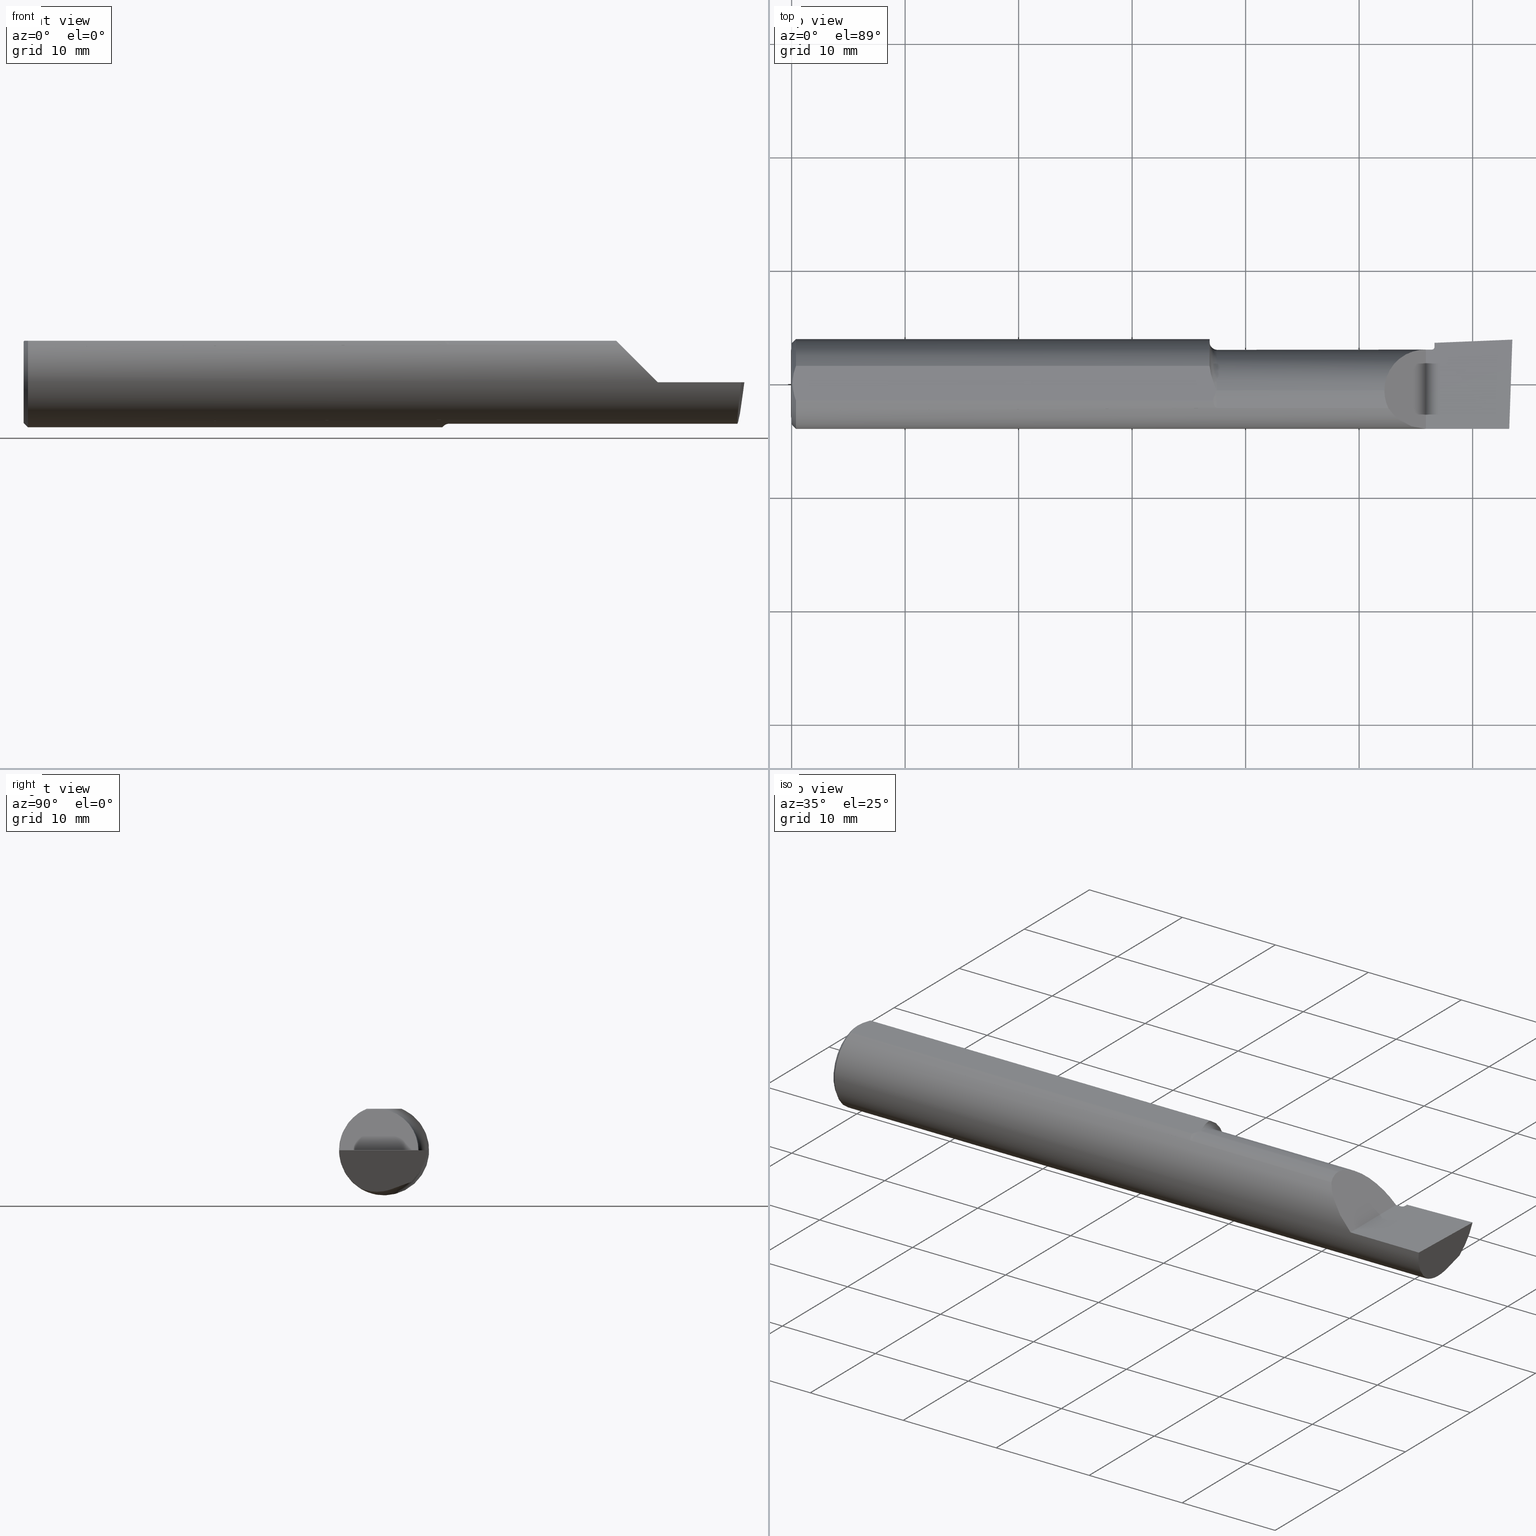
[diagram: canonical four-view strip — front | top / right | iso, engineering-drawing reading convention]
A machine part, canonical four-view strip (front | top / right | iso — engineering-drawing reading convention). The complete STEP part file that produces these views, byte-faithful:
ISO-10303-21;
HEADER;
FILE_DESCRIPTION (( 'STEP AP203' ),
    '1' );
FILE_NAME ('210312-BB318.STEP',
    '2024-04-17T23:24:31',
    ( '' ),
    ( '' ),
    'SwSTEP 2.0',
    'SolidWorks 2022',
    '' );
FILE_SCHEMA (( 'CONFIG_CONTROL_DESIGN' ));
ENDSEC;

DATA;
#1 = CARTESIAN_POINT ( 'NONE',  ( 0.01499999999999970281, 0.000000000000000000, 0.000000000000000000 ) ) ;
#2 = EDGE_LOOP ( 'NONE', ( #160, #362, #63, #96 ) ) ;
#3 = PERSON_AND_ORGANIZATION ( #416, #656 ) ;
#4 = CARTESIAN_POINT ( 'NONE',  ( 2.056100000000000705, -0.04605394310600454538, 0.1439000000000001112 ) ) ;
#5 = ORIENTED_EDGE ( 'NONE', *, *, #538, .T. ) ;
#6 = CARTESIAN_POINT ( 'NONE',  ( 2.476713598110543035, -0.008170903630063763509, -0.1439000000000001112 ) ) ;
#7 = EDGE_LOOP ( 'NONE', ( #213, #237, #634, #163, #200 ) ) ;
#8 = VECTOR ( 'NONE', #505, 39.37007874015748143 ) ;
#9 = PERSON_AND_ORGANIZATION ( #416, #656 ) ;
#10 = EDGE_CURVE ( 'NONE', #637, #297, #454, .T. ) ;
#11 = LINE ( 'NONE', #235, #178 ) ;
#12 = CARTESIAN_POINT ( 'NONE',  ( 0.004122478534597582081, 0.02050740516666000463, 0.1440999999999999504 ) ) ;
#13 = PERSON_AND_ORGANIZATION ( #416, #656 ) ;
#14 = LINE ( 'NONE', #360, #520 ) ;
#15 = EDGE_CURVE ( 'NONE', #652, #605, #627, .T. ) ;
#16 = CALENDAR_DATE ( 2024, 17, 4 ) ;
#17 = CARTESIAN_POINT ( 'NONE',  ( 1.473558490372085750, -0.08570000000287464337, 0.1304711462335919059 ) ) ;
#18 = CARTESIAN_POINT ( 'NONE',  ( 2.500000000000000000, 0.02421669862456291358, -0.1352217681310924902 ) ) ;
#19 = VECTOR ( 'NONE', #643, 39.37007874015748143 ) ;
#21 = ORIENTED_EDGE ( 'NONE', *, *, #296, .T. ) ;
#20 = EDGE_CURVE ( 'NONE', #75, #327, #229, .T. ) ;
#22 = VECTOR ( 'NONE', #540, 39.37007874015748143 ) ;
#23 = AXIS2_PLACEMENT_3D ( 'NONE', #294, #356, #687 ) ;
#24 = CARTESIAN_POINT ( 'NONE',  ( 1.470308733175471394, -0.08325729668116114979, 0.1320471792325036697 ) ) ;
#25 = CARTESIAN_POINT ( 'NONE',  ( 1.469201185154610068, -0.03693468910894925211, 0.1440999999999999504 ) ) ;
#26 = CARTESIAN_POINT ( 'NONE',  ( 0.002999999999999654852, 1.764715027525136477E-17, 0.1440999999999999504 ) ) ;
#27 = CARTESIAN_POINT ( 'NONE',  ( 1.474999999999999867, -0.02500000000000000486, -0.1439000000000000556 ) ) ;
#28 = VERTEX_POINT ( 'NONE', #180 ) ;
#29 = DIRECTION ( 'NONE',  ( 0.000000000000000000, 0.000000000000000000, 1.000000000000000000 ) ) ;
#30 = B_SPLINE_CURVE_WITH_KNOTS ( 'NONE', 3,
 ( #318, #89, #37, #429, #85, #304, #542, #421, #256, #260 ),
 .UNSPECIFIED., .F., .F.,
 ( 4, 2, 2, 2, 4 ),
 ( 0.001819519887002705571, 0.002458246943215913662, 0.003096973999429121754, 0.003735701055642329411, 0.004374428111855537503 ),
 .UNSPECIFIED. ) ;
#31 = DIRECTION ( 'NONE',  ( 0.000000000000000000, 1.000000000000000000, 0.000000000000000000 ) ) ;
#32 = ORIENTED_EDGE ( 'NONE', *, *, #64, .F. ) ;
#33 = CIRCLE ( 'NONE', #694, 0.1439000000000000556 ) ;
#34 = DIRECTION ( 'NONE',  ( 1.000000000000000000, 0.000000000000000000, 0.000000000000000000 ) ) ;
#35 = CARTESIAN_POINT ( 'NONE',  ( 2.499553225608604823, 0.1407279727905360600, 3.826894855694925850E-18 ) ) ;
#36 = ORIENTED_EDGE ( 'NONE', *, *, #201, .F. ) ;
#37 = CARTESIAN_POINT ( 'NONE',  ( 1.453136333117606371, -0.008834603825782310488, -0.1560646118524871007 ) ) ;
#38 = CARTESIAN_POINT ( 'NONE',  ( 1.474999999999999867, -0.02500000000000002220, 0.000000000000000000 ) ) ;
#39 = ORIENTED_EDGE ( 'NONE', *, *, #222, .T. ) ;
#40 = EDGE_CURVE ( 'NONE', #411, #616, #117, .T. ) ;
#41 = CARTESIAN_POINT ( 'NONE',  ( 1.450050504025077291, 0.06001999666777734638, 0.1440999999999999504 ) ) ;
#42 = ORIENTED_EDGE ( 'NONE', *, *, #513, .F. ) ;
#43 = EDGE_CURVE ( 'NONE', #157, #605, #470, .T. ) ;
#44 = CIRCLE ( 'NONE', #347, 0.02499999999999993894 ) ;
#45 = CALENDAR_DATE ( 2024, 17, 4 ) ;
#46 = CARTESIAN_POINT ( 'NONE',  ( 0.000000000000000000, 0.06250000000000000000, 0.1440999999999999504 ) ) ;
#47 = AXIS2_PLACEMENT_3D ( 'NONE', #111, #331, #571 ) ;
#48 = ORIENTED_EDGE ( 'NONE', *, *, #382, .F. ) ;
#49 = ADVANCED_FACE ( 'NONE', ( #174 ), #342, .T. ) ;
#50 = CARTESIAN_POINT ( 'NONE',  ( 2.056100000000000705, -0.02500000000000000486, 0.1439000000000001112 ) ) ;
#51 = ORIENTED_EDGE ( 'NONE', *, *, #95, .T. ) ;
#52 =( NAMED_UNIT ( * ) PLANE_ANGLE_UNIT ( ) SI_UNIT ( $, .RADIAN. ) );
#53 = CARTESIAN_POINT ( 'NONE',  ( 1.471844053232376659, -0.02500000000003148315, 0.1440999999999999504 ) ) ;
#54 = ORIENTED_EDGE ( 'NONE', *, *, #104, .F. ) ;
#55 = DIRECTION ( 'NONE',  ( -1.000000000000000000, -0.000000000000000000, -0.000000000000000000 ) ) ;
#56 = ORIENTED_EDGE ( 'NONE', *, *, #405, .T. ) ;
#57 = CLOSED_SHELL ( 'NONE', ( #548, #232, #357, #287, #436, #490, #73, #346, #699, #617, #276, #441, #521, #424, #593, #674, #49, #302, #666 ) ) ;
#58 = VECTOR ( 'NONE', #231, 39.37007874015748143 ) ;
#59 = CARTESIAN_POINT ( 'NONE',  ( 0.01499999999999972536, -0.06001999666777736026, 0.1440999999999999504 ) ) ;
#60 = CARTESIAN_POINT ( 'NONE',  ( 2.476130359589496788, -0.02499999999999999098, -0.1439000000000001112 ) ) ;
#61 = ORIENTED_EDGE ( 'NONE', *, *, #704, .F. ) ;
#62 = PLANE ( 'NONE',  #338 ) ;
#63 = ORIENTED_EDGE ( 'NONE', *, *, #726, .F. ) ;
#64 = EDGE_CURVE ( 'NONE', #452, #537, #622, .T. ) ;
#65 = CARTESIAN_POINT ( 'NONE',  ( 1.474999999999999867, -0.08569999999999942941, 0.1304711462354803120 ) ) ;
#66 = TOROIDAL_SURFACE ( 'NONE', #431, 0.1688999999999999946, 0.02499999999999993894 ) ;
#67 = CARTESIAN_POINT ( 'NONE',  ( 0.002999999999999654852, 1.764715027525136477E-17, 0.1440999999999999504 ) ) ;
#68 = CARTESIAN_POINT ( 'NONE',  ( 0.01499999999999972536, -0.06001999666777736026, 0.1440999999999999504 ) ) ;
#69 = EDGE_CURVE ( 'NONE', #171, #672, #584, .T. ) ;
#70 = CARTESIAN_POINT ( 'NONE',  ( 2.489266190342419360, -0.1561000000000000165, 3.826894855694925850E-18 ) ) ;
#71 = ORIENTED_EDGE ( 'NONE', *, *, #43, .F. ) ;
#72 = CARTESIAN_POINT ( 'NONE',  ( 0.002999999999999647914, -0.01031315224690933403, 0.1440999999999999781 ) ) ;
#73 = ADVANCED_FACE ( 'NONE', ( #195 ), #153, .F. ) ;
#74 = CARTESIAN_POINT ( 'NONE',  ( 0.002999999999999654852, 1.764715027525136477E-17, 0.1440999999999999504 ) ) ;
#75 = VERTEX_POINT ( 'NONE', #242 ) ;
#76 = CARTESIAN_POINT ( 'NONE',  ( 2.229814999632693251, 0.07017856946061203083, -0.1184930152355830879 ) ) ;
#77 = CARTESIAN_POINT ( 'NONE',  ( 2.219999999999999751, -0.02500000000000000486, 0.000000000000000000 ) ) ;
#78 = PRODUCT_DEFINITION_FORMATION_WITH_SPECIFIED_SOURCE ( 'ANY', '', #365, .NOT_KNOWN. ) ;
#79 = VERTEX_POINT ( 'NONE', #189 ) ;
#80 = VECTOR ( 'NONE', #168, 39.37007874015748143 ) ;
#81 = CONICAL_SURFACE ( 'NONE', #278, 0.1560999999999999888, 0.7853981633974471688 ) ;
#82 = PLANE ( 'NONE',  #23 ) ;
#83 = CARTESIAN_POINT ( 'NONE',  ( 0.01131807689752593361, 0.05044405151276061539, 0.1440999999999999781 ) ) ;
#84 = ORIENTED_EDGE ( 'NONE', *, *, #639, .T. ) ;
#85 = CARTESIAN_POINT ( 'NONE',  ( 1.451388441185261113, 0.01585133794323623918, -0.1555099485709025287 ) ) ;
#86 = DIRECTION ( 'NONE',  ( -1.000000000000000000, -0.000000000000000000, -0.000000000000000000 ) ) ;
#87 = VERTEX_POINT ( 'NONE', #474 ) ;
#88 = EDGE_CURVE ( 'NONE', #297, #637, #177, .T. ) ;
#89 = CARTESIAN_POINT ( 'NONE',  ( 1.453902027940762842, -0.01695323297373864391, -0.1553906460178914595 ) ) ;
#90 = FACE_OUTER_BOUND ( 'NONE', #2, .T. ) ;
#91 = ORIENTED_EDGE ( 'NONE', *, *, #354, .T. ) ;
#92 = DIRECTION ( 'NONE',  ( 0.000000000000000000, 0.000000000000000000, -1.000000000000000000 ) ) ;
#93 = AXIS2_PLACEMENT_3D ( 'NONE', #38, #86, #368 ) ;
#94 = DIRECTION ( 'NONE',  ( 0.000000000000000000, -1.000000000000000000, 0.000000000000000000 ) ) ;
#95 = EDGE_CURVE ( 'NONE', #233, #262, #107, .T. ) ;
#96 = ORIENTED_EDGE ( 'NONE', *, *, #678, .T. ) ;
#97 = CARTESIAN_POINT ( 'NONE',  ( 2.229821002046091571, 0.07620616581628353314, -0.1136908642440133677 ) ) ;
#98 = FACE_OUTER_BOUND ( 'NONE', #313, .T. ) ;
#99 = EDGE_CURVE ( 'NONE', #684, #135, #555, .T. ) ;
#100 = VERTEX_POINT ( 'NONE', #410 ) ;
#101 = CYLINDRICAL_SURFACE ( 'NONE', #592, 0.1560999999999999888 ) ;
#102 = CYLINDRICAL_SURFACE ( 'NONE', #434, 0.1439000000000001112 ) ;
#103 = EDGE_LOOP ( 'NONE', ( #380, #677 ) ) ;
#104 = EDGE_CURVE ( 'NONE', #652, #581, #305, .T. ) ;
#105 = PERSON_AND_ORGANIZATION ( #416, #656 ) ;
#106 = DIRECTION ( 'NONE',  ( -1.000000000000000000, 0.000000000000000000, 0.000000000000000000 ) ) ;
#107 = CIRCLE ( 'NONE', #569, 0.1688999999999999946 ) ;
#108 = CIRCLE ( 'NONE', #457, 0.1439000000000001667 ) ;
#109 = ORIENTED_EDGE ( 'NONE', *, *, #568, .F. ) ;
#110 = PERSON_AND_ORGANIZATION ( #416, #656 ) ;
#111 = CARTESIAN_POINT ( 'NONE',  ( 2.229999999999999538, -0.02500000000000000486, 0.000000000000000000 ) ) ;
#112 = ORIENTED_EDGE ( 'NONE', *, *, #639, .F. ) ;
#113 = LINE ( 'NONE', #173, #197 ) ;
#114 = EDGE_LOOP ( 'NONE', ( #332, #292, #185, #139, #42 ) ) ;
#115 = CIRCLE ( 'NONE', #670, 0.1560999999999999888 ) ;
#116 = LOCAL_TIME ( 16, 24, 31.00000000000000000, #517 ) ;
#117 =( BOUNDED_CURVE ( )  B_SPLINE_CURVE ( 3, ( #728, #681, #575, #458 ),
 .UNSPECIFIED., .F., .F. ) 
 B_SPLINE_CURVE_WITH_KNOTS ( ( 4, 4 ),
 ( 4.206370596475371038, 4.793754225472294905 ),
 .UNSPECIFIED. ) 
 CURVE ( )  GEOMETRIC_REPRESENTATION_ITEM ( )  RATIONAL_B_SPLINE_CURVE ( ( 1.000000000000000000, 0.9714544434386382932, 0.9714544434386382932, 1.000000000000000000 ) ) 
 REPRESENTATION_ITEM ( '' )  );
#118 = ORIENTED_EDGE ( 'NONE', *, *, #95, .F. ) ;
#119 = TOROIDAL_SURFACE ( 'NONE', #93, 0.1688999999999999946, 0.02499999999999993894 ) ;
#120 = CIRCLE ( 'NONE', #47, 0.1539000000000001200 ) ;
#121 = APPROVAL_ROLE ( '' ) ;
#122 = DIRECTION ( 'NONE',  ( 1.000000000000000000, -0.000000000000000000, -0.000000000000000000 ) ) ;
#123 = B_SPLINE_CURVE_WITH_KNOTS ( 'NONE', 3,
 ( #26, #72, #692, #638, #456, #68 ),
 .UNSPECIFIED., .F., .F.,
 ( 4, 2, 4 ),
 ( 0.004180243930011207955, 0.004951811791491188969, 0.005723379652971170850 ),
 .UNSPECIFIED. ) ;
#124 = ORIENTED_EDGE ( 'NONE', *, *, #690, .T. ) ;
#125 =( BOUNDED_CURVE ( )  B_SPLINE_CURVE ( 3, ( #167, #615, #4, #50 ),
 .UNSPECIFIED., .F., .T. ) 
 B_SPLINE_CURVE_WITH_KNOTS ( ( 4, 4 ),
 ( 5.847732816089067143, 6.283185307179586232 ),
 .UNSPECIFIED. ) 
 CURVE ( )  GEOMETRIC_REPRESENTATION_ITEM ( )  RATIONAL_B_SPLINE_CURVE ( ( 1.000000000000000000, 0.9842607512044772022, 0.9842607512044772022, 1.000000000000000000 ) ) 
 REPRESENTATION_ITEM ( '' )  );
#126 = DIRECTION ( 'NONE',  ( 0.7071067811865483499, 0.000000000000000000, -0.7071067811865466846 ) ) ;
#127 = DIRECTION ( 'NONE',  ( 0.000000000000000000, 0.000000000000000000, 1.000000000000000000 ) ) ;
#128 = CARTESIAN_POINT ( 'NONE',  ( 1.454862523376303063, -0.02499999999999999445, -0.1540850739039962836 ) ) ;
#129 = CARTESIAN_POINT ( 'NONE',  ( 2.056100000000000705, -0.02500000000000000486, 0.1439000000000001112 ) ) ;
#130 = LOCAL_TIME ( 16, 24, 31.00000000000000000, #463 ) ;
#131 = B_SPLINE_CURVE_WITH_KNOTS ( 'NONE', 3,
 ( #504, #727, #220, #445, #224, #626, #24, #241, #17, #65 ),
 .UNSPECIFIED., .F., .F.,
 ( 4, 2, 2, 2, 4 ),
 ( 5.292347910093808338E-07, 0.0004247077115782286029, 0.0006367969499718418788, 0.0007428415691686483541, 0.0008488861883654550463 ),
 .UNSPECIFIED. ) ;
#132 = PLANE ( 'NONE',  #376 ) ;
#133 = CARTESIAN_POINT ( 'NONE',  ( 2.476130359589496788, -0.02499999999999999098, -0.1439000000000001112 ) ) ;
#134 = CARTESIAN_POINT ( 'NONE',  ( 0.000000000000000000, 0.000000000000000000, 0.000000000000000000 ) ) ;
#135 = VERTEX_POINT ( 'NONE', #67 ) ;
#136 = CARTESIAN_POINT ( 'NONE',  ( 1.471844053232376659, -0.02500000000003148315, 0.1440999999999999504 ) ) ;
#137 = CARTESIAN_POINT ( 'NONE',  ( 2.227833546180562951, 0.05470044517252423133, -0.1241265917587196510 ) ) ;
#138 = CC_DESIGN_APPROVAL ( #187, ( #373 ) ) ;
#139 = ORIENTED_EDGE ( 'NONE', *, *, #271, .F. ) ;
#140 = VECTOR ( 'NONE', #633, 39.37007874015748143 ) ;
#141 = VECTOR ( 'NONE', #126, 39.37007874015748143 ) ;
#142 = FACE_OUTER_BOUND ( 'NONE', #509, .T. ) ;
#143 = LINE ( 'NONE', #551, #22 ) ;
#144 = DATE_TIME_ROLE ( 'classification_date' ) ;
#145 = CARTESIAN_POINT ( 'NONE',  ( 1.450000000000000178, 0.000000000000000000, 0.000000000000000000 ) ) ;
#146 = FACE_OUTER_BOUND ( 'NONE', #663, .T. ) ;
#147 = ORIENTED_EDGE ( 'NONE', *, *, #40, .F. ) ;
#148 = PRODUCT_DEFINITION_SHAPE ( 'NONE', 'NONE',  #446 ) ;
#149 = DIRECTION ( 'NONE',  ( 1.000000000000000000, 0.000000000000000000, 0.000000000000000000 ) ) ;
#150 = EDGE_CURVE ( 'NONE', #75, #79, #246, .T. ) ;
#151 = CARTESIAN_POINT ( 'NONE',  ( 2.146287522244399781, -0.1560999999999999888, 0.05371247775560062526 ) ) ;
#152 = ORIENTED_EDGE ( 'NONE', *, *, #20, .F. ) ;
#153 = TOROIDAL_SURFACE ( 'NONE', #631, 0.1539000000000001200, 0.009999999999999936023 ) ;
#154 = PLANE ( 'NONE',  #240 ) ;
#155 = EDGE_CURVE ( 'NONE', #525, #672, #507, .T. ) ;
#156 = FACE_OUTER_BOUND ( 'NONE', #449, .T. ) ;
#157 = VERTEX_POINT ( 'NONE', #27 ) ;
#158 = CARTESIAN_POINT ( 'NONE',  ( 0.01499999999999970281, 0.06001999666777736719, 0.1440999999999999504 ) ) ;
#159 = DIRECTION ( 'NONE',  ( -1.000000000000000000, -0.000000000000000000, -0.000000000000000000 ) ) ;
#160 = ORIENTED_EDGE ( 'NONE', *, *, #382, .T. ) ;
#161 = MECHANICAL_CONTEXT ( 'NONE', #282, 'mechanical' ) ;
#162 = DIRECTION ( 'NONE',  ( 0.7071067811865509034, 0.000000000000000000, 0.7071067811865442421 ) ) ;
#163 = ORIENTED_EDGE ( 'NONE', *, *, #720, .F. ) ;
#164 = VECTOR ( 'NONE', #149, 39.37007874015748143 ) ;
#165 = B_SPLINE_CURVE_WITH_KNOTS ( 'NONE', 3,
 ( #546, #713, #706, #41 ),
 .UNSPECIFIED., .F., .F.,
 ( 4, 4 ),
 ( 0.002773882331925834558, 0.003069179409190569887 ),
 .UNSPECIFIED. ) ;
#166 = DATE_AND_TIME ( #45, #716 ) ;
#167 = CARTESIAN_POINT ( 'NONE',  ( 2.069528853764517784, -0.08569999999999491913, 0.1304711462354829210 ) ) ;
#168 = DIRECTION ( 'NONE',  ( -1.000000000000000000, -0.000000000000000000, -0.000000000000000000 ) ) ;
#169 = PERSON_AND_ORGANIZATION_ROLE ( 'creator' ) ;
#170 = CARTESIAN_POINT ( 'NONE',  ( 2.069528853764517784, -0.08569999999999491913, 0.1304711462354829210 ) ) ;
#171 = VERTEX_POINT ( 'NONE', #291 ) ;
#172 = LENGTH_MEASURE_WITH_UNIT ( LENGTH_MEASURE( 0.02539999999999999897 ), #324 );
#173 = CARTESIAN_POINT ( 'NONE',  ( 0.000000000000000000, -0.02499999999999999098, -0.1439000000000001112 ) ) ;
#174 = FACE_OUTER_BOUND ( 'NONE', #647, .T. ) ;
#175 = PERSON_AND_ORGANIZATION ( #416, #656 ) ;
#176 = ORIENTED_EDGE ( 'NONE', *, *, #621, .T. ) ;
#177 = CIRCLE ( 'NONE', #309, 0.1411000000000003085 ) ;
#178 = VECTOR ( 'NONE', #464, 39.37007874015748143 ) ;
#179 = CARTESIAN_POINT ( 'NONE',  ( 2.229999999999999538, 0.1289000000000001256, 0.000000000000000000 ) ) ;
#180 = CARTESIAN_POINT ( 'NONE',  ( 0.01499999999999970281, 0.000000000000000000, -0.1560999999999999888 ) ) ;
#181 = PLANE ( 'NONE',  #211 ) ;
#182 = CARTESIAN_POINT ( 'NONE',  ( 2.222129735053914867, 0.03180793362839361843, -0.1324587845483784776 ) ) ;
#183 = CARTESIAN_POINT ( 'NONE',  ( 2.229999999999999538, -0.05609999999999996934, 0.04000000000000000083 ) ) ;
#184 = CARTESIAN_POINT ( 'NONE',  ( 2.225157097429441677, 0.04322541840385490941, -0.1283031599399230838 ) ) ;
#185 = ORIENTED_EDGE ( 'NONE', *, *, #497, .T. ) ;
#186 = SECURITY_CLASSIFICATION_LEVEL ( 'unclassified' ) ;
#187 = APPROVAL ( #514, 'UNSPECIFIED' ) ;
#188 = FACE_OUTER_BOUND ( 'NONE', #190, .T. ) ;
#189 = CARTESIAN_POINT ( 'NONE',  ( 2.199999999999999289, 0.1189000000000001028, 3.826894855694925850E-18 ) ) ;
#190 = EDGE_LOOP ( 'NONE', ( #494, #5, #667 ) ) ;
#191 = DIRECTION ( 'NONE',  ( -1.000000000000000000, -0.000000000000000000, -0.000000000000000000 ) ) ;
#192 = EDGE_LOOP ( 'NONE', ( #374, #243, #545, #461, #415, #32 ) ) ;
#193 = DIRECTION ( 'NONE',  ( 0.1219414168599299575, 0.000000000000000000, 0.9925372994775525370 ) ) ;
#194 = EDGE_CURVE ( 'NONE', #684, #608, #477, .T. ) ;
#195 = FACE_OUTER_BOUND ( 'NONE', #719, .T. ) ;
#196 = ORIENTED_EDGE ( 'NONE', *, *, #636, .T. ) ;
#197 = VECTOR ( 'NONE', #389, 39.37007874015748143 ) ;
#198 = CARTESIAN_POINT ( 'NONE',  ( 1.474999999999999867, -0.02500000000000002220, 0.000000000000000000 ) ) ;
#199 = CARTESIAN_POINT ( 'NONE',  ( 2.484581445595343219, 0.09576735185317623855, -0.1091794601135747944 ) ) ;
#200 = ORIENTED_EDGE ( 'NONE', *, *, #497, .F. ) ;
#201 = EDGE_CURVE ( 'NONE', #208, #616, #223, .T. ) ;
#202 = MANIFOLD_SOLID_BREP ( 'Front', #57 ) ;
#203 = CARTESIAN_POINT ( 'NONE',  ( 2.229999999999999538, 0.1425688816766004785, 0.000000000000000000 ) ) ;
#204 = ORIENTED_EDGE ( 'NONE', *, *, #69, .T. ) ;
#205 = EDGE_CURVE ( 'NONE', #605, #572, #344, .T. ) ;
#206 = DIRECTION ( 'NONE',  ( 0.000000000000000000, 0.000000000000000000, 1.000000000000000000 ) ) ;
#207 = CARTESIAN_POINT ( 'NONE',  ( 1.450000000000000178, 0.07070000000000016549, 0.1391715488165593539 ) ) ;
#208 = VERTEX_POINT ( 'NONE', #203 ) ;
#209 = AXIS2_PLACEMENT_3D ( 'NONE', #393, #388, #620 ) ;
#210 = DIRECTION ( 'NONE',  ( -1.000000000000000000, -0.000000000000000000, -0.000000000000000000 ) ) ;
#211 = AXIS2_PLACEMENT_3D ( 'NONE', #535, #409, #700 ) ;
#212 = DIRECTION ( 'NONE',  ( 0.000000000000000000, 0.000000000000000000, 1.000000000000000000 ) ) ;
#213 = ORIENTED_EDGE ( 'NONE', *, *, #10, .F. ) ;
#214 = DIRECTION ( 'NONE',  ( 0.03463576215158579996, 0.9994000019912840926, 0.000000000000000000 ) ) ;
#215 = ORIENTED_EDGE ( 'NONE', *, *, #402, .F. ) ;
#216 = CARTESIAN_POINT ( 'NONE',  ( 1.474999999999999867, -0.02500000000000000486, 0.000000000000000000 ) ) ;
#217 = CARTESIAN_POINT ( 'NONE',  ( 2.477647009804057276, 0.008402520951239019972, -0.1409776580835795656 ) ) ;
#218 = ORIENTED_EDGE ( 'NONE', *, *, #322, .T. ) ;
#219 = CC_DESIGN_PERSON_AND_ORGANIZATION_ASSIGNMENT ( #13, #453, ( #373 ) ) ;
#220 = CARTESIAN_POINT ( 'NONE',  ( 1.463486186723763183, -0.06993940022577684046, 0.1396536156489262270 ) ) ;
#221 = ORIENTED_EDGE ( 'NONE', *, *, #364, .T. ) ;
#222 = EDGE_CURVE ( 'NONE', #423, #395, #316, .T. ) ;
#223 = B_SPLINE_CURVE_WITH_KNOTS ( 'NONE', 3,
 ( #350, #528, #289, #524, #698, #721, #488 ),
 .UNSPECIFIED., .F., .F.,
 ( 4, 3, 4 ),
 ( 0.009746653936076972100, 0.009910325884368138827, 0.01661039546317633411 ),
 .UNSPECIFIED. ) ;
#224 = CARTESIAN_POINT ( 'NONE',  ( 1.467376702052392012, -0.07908290169519981150, 0.1346075232099596952 ) ) ;
#225 = ORIENTED_EDGE ( 'NONE', *, *, #462, .T. ) ;
#226 = EDGE_CURVE ( 'NONE', #537, #725, #143, .T. ) ;
#227 = DATE_TIME_ROLE ( 'creation_date' ) ;
#228 = CARTESIAN_POINT ( 'NONE',  ( 1.474999999999999867, -0.02500000000000002220, 0.000000000000000000 ) ) ;
#229 = LINE ( 'NONE', #399, #8 ) ;
#230 = CC_DESIGN_APPROVAL ( #630, ( #446 ) ) ;
#231 = DIRECTION ( 'NONE',  ( 0.000000000000000000, 1.000000000000000000, 0.000000000000000000 ) ) ;
#232 = ADVANCED_FACE ( 'NONE', ( #90 ), #102, .T. ) ;
#233 = VERTEX_POINT ( 'NONE', #207 ) ;
#234 = CIRCLE ( 'NONE', #625, 0.2026556797788580666 ) ;
#235 = CARTESIAN_POINT ( 'NONE',  ( 2.056000000000000050, -0.1560999999999999888, 3.826894855694925850E-18 ) ) ;
#236 = CARTESIAN_POINT ( 'NONE',  ( 2.056100000000000705, 0.05929466837451181221, 0.1439000000000001112 ) ) ;
#237 = ORIENTED_EDGE ( 'NONE', *, *, #573, .T. ) ;
#238 = DIRECTION ( 'NONE',  ( 1.000000000000000000, 0.000000000000000000, 0.000000000000000000 ) ) ;
#239 = CARTESIAN_POINT ( 'NONE',  ( 2.229294457104740168, 0.06238674940841202471, -0.1213290058053423520 ) ) ;
#240 = AXIS2_PLACEMENT_3D ( 'NONE', #710, #377, #193 ) ;
#241 = CARTESIAN_POINT ( 'NONE',  ( 1.472282960142827557, -0.08496306084893956445, 0.1309561502377618036 ) ) ;
#242 = CARTESIAN_POINT ( 'NONE',  ( 2.056100000000000705, -0.02500000000000000486, 0.1439000000000001112 ) ) ;
#243 = ORIENTED_EDGE ( 'NONE', *, *, #194, .F. ) ;
#244 = AXIS2_PLACEMENT_3D ( 'NONE', #145, #34, #554 ) ;
#245 = EDGE_CURVE ( 'NONE', #581, #616, #662, .T. ) ;
#246 =( BOUNDED_CURVE ( )  B_SPLINE_CURVE ( 3, ( #129, #236, #460, #689 ),
 .UNSPECIFIED., .F., .T. ) 
 B_SPLINE_CURVE_WITH_KNOTS ( ( 4, 4 ),
 ( 0.000000000000000000, 1.570796326794898112 ),
 .UNSPECIFIED. ) 
 CURVE ( )  GEOMETRIC_REPRESENTATION_ITEM ( )  RATIONAL_B_SPLINE_CURVE ( ( 1.000000000000000000, 0.8047378541243646044, 0.8047378541243646044, 1.000000000000000000 ) ) 
 REPRESENTATION_ITEM ( '' )  );
#247 = CARTESIAN_POINT ( 'NONE',  ( 2.199999999999999289, -0.1560999999999999888, 3.826894855694925850E-18 ) ) ;
#248 = CARTESIAN_POINT ( 'NONE',  ( 2.229814999632693251, 0.07017856946061203083, -0.1184930152355830879 ) ) ;
#249 = DIRECTION ( 'NONE',  ( -1.000000000000000000, 0.000000000000000000, 0.000000000000000000 ) ) ;
#250 = CARTESIAN_POINT ( 'NONE',  ( 2.224174734775642204, 0.03941084190547503724, -0.1296915522416647593 ) ) ;
#251 = ORIENTED_EDGE ( 'NONE', *, *, #613, .T. ) ;
#252 = CARTESIAN_POINT ( 'NONE',  ( 1.474999999999999867, -0.02500000000000000486, 0.000000000000000000 ) ) ;
#253 = CARTESIAN_POINT ( 'NONE',  ( 1.474999999999999867, -0.02500000000000002220, 0.1439000000000000556 ) ) ;
#254 = ORIENTED_EDGE ( 'NONE', *, *, #245, .T. ) ;
#255 = APPROVAL_ROLE ( '' ) ;
#256 = CARTESIAN_POINT ( 'NONE',  ( 1.450000000000000400, 0.06336441380915118493, -0.1428980715728493389 ) ) ;
#257 = CARTESIAN_POINT ( 'NONE',  ( 1.474999999999999867, -0.08569999999999930451, -0.1304711462354803397 ) ) ;
#258 = EDGE_LOOP ( 'NONE', ( #695, #91, #61, #152, #317, #369, #512, #722 ) ) ;
#259 = B_SPLINE_CURVE_WITH_KNOTS ( 'NONE', 3,
 ( #403, #579, #459, #635, #298, #469, #632, #400, #628, #136 ),
 .UNSPECIFIED., .F., .F.,
 ( 4, 2, 2, 2, 4 ),
 ( 0.01301670781631528509, 0.01412932456335375814, 0.01468563293687299640, 0.01496378712363261726, 0.01524194131039223639 ),
 .UNSPECIFIED. ) ;
#260 = CARTESIAN_POINT ( 'NONE',  ( 1.450000000000000178, 0.07070000000000016549, -0.1391715488165593539 ) ) ;
#261 = CARTESIAN_POINT ( 'NONE',  ( 0.000000000000000000, 0.000000000000000000, -0.1411000000000003085 ) ) ;
#262 = VERTEX_POINT ( 'NONE', #319 ) ;
#263 = CARTESIAN_POINT ( 'NONE',  ( 2.229999999999999094, 0.09791314462616583503, -0.09193769788322243841 ) ) ;
#264 = CARTESIAN_POINT ( 'NONE',  ( 2.229814999632693251, 0.07017856946061203083, -0.1184930152355830879 ) ) ;
#265 = ORIENTED_EDGE ( 'NONE', *, *, #226, .T. ) ;
#266 = AXIS2_PLACEMENT_3D ( 'NONE', #46, #547, #439 ) ;
#267 = CIRCLE ( 'NONE', #244, 0.1560999999999999888 ) ;
#268 = CARTESIAN_POINT ( 'NONE',  ( 1.470128093538963343, -0.08306175160949928749, -0.1321708551218366279 ) ) ;
#269 = ORIENTED_EDGE ( 'NONE', *, *, #704, .T. ) ;
#270 =( CONVERSION_BASED_UNIT ( 'INCH', #172 ) LENGTH_UNIT ( ) NAMED_UNIT ( #564 ) );
#271 = EDGE_CURVE ( 'NONE', #725, #28, #387, .T. ) ;
#272 = FACE_OUTER_BOUND ( 'NONE', #114, .T. ) ;
#273 = CARTESIAN_POINT ( 'NONE',  ( 1.474999999999999867, -0.02500000000000000486, 0.000000000000000000 ) ) ;
#274 = FACE_OUTER_BOUND ( 'NONE', #641, .T. ) ;
#275 = VERTEX_POINT ( 'NONE', #604 ) ;
#276 = ADVANCED_FACE ( 'NONE', ( #714 ), #556, .F. ) ;
#277 = CARTESIAN_POINT ( 'NONE',  ( 2.475247014433751946, -0.06661082633900398953, -0.1393521354400291679 ) ) ;
#278 = AXIS2_PLACEMENT_3D ( 'NONE', #1, #122, #341 ) ;
#279 = DIRECTION ( 'NONE',  ( -1.000000000000000000, -0.000000000000000000, -0.000000000000000000 ) ) ;
#280 = DIRECTION ( 'NONE',  ( 0.000000000000000000, 0.000000000000000000, 1.000000000000000000 ) ) ;
#281 = ORIENTED_EDGE ( 'NONE', *, *, #15, .T. ) ;
#282 = APPLICATION_CONTEXT ( 'configuration controlled 3d designs of mechanical parts and assemblies' ) ;
#283 = ORIENTED_EDGE ( 'NONE', *, *, #205, .T. ) ;
#284 = DIRECTION ( 'NONE',  ( 0.7071067811865483499, 8.659560562354922997E-17, 0.7071067811865466846 ) ) ;
#285 = DIRECTION ( 'NONE',  ( 0.000000000000000000, 0.000000000000000000, 1.000000000000000000 ) ) ;
#286 = AXIS2_PLACEMENT_3D ( 'NONE', #228, #448, #515 ) ;
#287 = ADVANCED_FACE ( 'NONE', ( #156 ), #119, .F. ) ;
#288 = FACE_OUTER_BOUND ( 'NONE', #258, .T. ) ;
#289 = CARTESIAN_POINT ( 'NONE',  ( 2.234292250889879039, 0.1427447335443261800, 3.826894855694925850E-18 ) ) ;
#290 = FACE_OUTER_BOUND ( 'NONE', #585, .T. ) ;
#291 = CARTESIAN_POINT ( 'NONE',  ( 2.478902233428061930, 0.02421669862456291358, -0.1352217681310924902 ) ) ;
#292 = ORIENTED_EDGE ( 'NONE', *, *, #88, .F. ) ;
#293 = LOCAL_TIME ( 16, 24, 31.00000000000000000, #723 ) ;
#294 = CARTESIAN_POINT ( 'NONE',  ( 0.000000000000000000, 0.000000000000000000, 0.000000000000000000 ) ) ;
#295 = CARTESIAN_POINT ( 'NONE',  ( 0.01499999999999970281, 0.06001999666777736719, 0.1440999999999999504 ) ) ;
#297 = VERTEX_POINT ( 'NONE', #261 ) ;
#296 = EDGE_CURVE ( 'NONE', #452, #327, #518, .T. ) ;
#298 = CARTESIAN_POINT ( 'NONE',  ( 1.463353959584570596, 0.002866311517161839687, 0.1440999999999999504 ) ) ;
#299 = CARTESIAN_POINT ( 'NONE',  ( 0.002999999999999648781, 0.01034624861404697359, 0.1440999999999999781 ) ) ;
#300 = EDGE_LOOP ( 'NONE', ( #283, #499, #594 ) ) ;
#301 = CARTESIAN_POINT ( 'NONE',  ( 1.474999999999999867, -0.08569999999999930451, -0.1304711462354803397 ) ) ;
#302 = ADVANCED_FACE ( 'NONE', ( #98 ), #685, .T. ) ;
#303 = DIRECTION ( 'NONE',  ( 1.000000000000000000, 6.829619984160658046E-18, 0.000000000000000000 ) ) ;
#304 = CARTESIAN_POINT ( 'NONE',  ( 1.450649978979527077, 0.03207608857981674583, -0.1529893249888212570 ) ) ;
#305 =( BOUNDED_CURVE ( )  B_SPLINE_CURVE ( 3, ( #577, #693, #536, #70 ),
 .UNSPECIFIED., .F., .T. ) 
 B_SPLINE_CURVE_WITH_KNOTS ( ( 4, 4 ),
 ( 0.3062340898531116795, 1.295854645076560674 ),
 .UNSPECIFIED. ) 
 CURVE ( )  GEOMETRIC_REPRESENTATION_ITEM ( )  RATIONAL_B_SPLINE_CURVE ( ( 1.000000000000000000, 0.9200392120919966832, 0.9200392120919966832, 1.000000000000000000 ) ) 
 REPRESENTATION_ITEM ( '' )  );
#306 = CARTESIAN_POINT ( 'NONE',  ( 1.472162220462617244, -0.08489276752862366660, -0.1310023188550751005 ) ) ;
#307 = CIRCLE ( 'NONE', #371, 0.1439000000000000556 ) ;
#308 = ORIENTED_EDGE ( 'NONE', *, *, #64, .T. ) ;
#309 = AXIS2_PLACEMENT_3D ( 'NONE', #134, #701, #471 ) ;
#310 = DIRECTION ( 'NONE',  ( -1.000000000000000000, -0.000000000000000000, -0.000000000000000000 ) ) ;
#311 = CARTESIAN_POINT ( 'NONE',  ( 1.467151728812736033, -0.07866717671367091935, -0.1348531152278719392 ) ) ;
#312 = CC_DESIGN_DATE_AND_TIME_ASSIGNMENT ( #166, #227, ( #446 ) ) ;
#313 = EDGE_LOOP ( 'NONE', ( #147, #433, #709, #359, #419 ) ) ;
#314 = CARTESIAN_POINT ( 'NONE',  ( 1.450050504025077291, 0.06001999666777734638, 0.1440999999999999504 ) ) ;
#315 = CARTESIAN_POINT ( 'NONE',  ( 2.200000000000000178, -0.05609999999999996934, 0.04000000000000000083 ) ) ;
#316 =( BOUNDED_CURVE ( )  B_SPLINE_CURVE ( 3, ( #711, #151, #544, #498 ),
 .UNSPECIFIED., .F., .T. ) 
 B_SPLINE_CURVE_WITH_KNOTS ( ( 4, 4 ),
 ( 4.712388980384689674, 5.702009535608170587 ),
 .UNSPECIFIED. ) 
 CURVE ( )  GEOMETRIC_REPRESENTATION_ITEM ( )  RATIONAL_B_SPLINE_CURVE ( ( 1.000000000000000000, 0.9200392120919916872, 0.9200392120919916872, 1.000000000000000000 ) ) 
 REPRESENTATION_ITEM ( '' )  );
#317 = ORIENTED_EDGE ( 'NONE', *, *, #150, .T. ) ;
#318 = CARTESIAN_POINT ( 'NONE',  ( 1.454862523376303063, -0.02499999999999999445, -0.1540850739039962836 ) ) ;
#319 = CARTESIAN_POINT ( 'NONE',  ( 1.450000000000000178, 0.07070000000000016549, -0.1391715488165593539 ) ) ;
#320 = EDGE_LOOP ( 'NONE', ( #408, #308, #478, #428 ) ) ;
#321 = LOCAL_TIME ( 16, 24, 31.00000000000000000, #438 ) ;
#322 = EDGE_CURVE ( 'NONE', #525, #411, #334, .T. ) ;
#323 = AXIS2_PLACEMENT_3D ( 'NONE', #273, #279, #127 ) ;
#324 =( LENGTH_UNIT ( ) NAMED_UNIT ( * ) SI_UNIT ( $, .METRE. ) );
#325 = AXIS2_PLACEMENT_3D ( 'NONE', #527, #191, #688 ) ;
#326 = B_SPLINE_CURVE_WITH_KNOTS ( 'NONE', 3,
 ( #417, #263, #603, #426, #97, #650 ),
 .UNSPECIFIED., .F., .F.,
 ( 4, 2, 4 ),
 ( 0.001299426195341846658, 0.001888440673100858815, 0.002477455150859870971 ),
 .UNSPECIFIED. ) ;
#327 = VERTEX_POINT ( 'NONE', #253 ) ;
#328 = PERSON_AND_ORGANIZATION_ROLE ( 'design_supplier' ) ;
#329 = DIRECTION ( 'NONE',  ( 0.000000000000000000, 0.000000000000000000, 1.000000000000000000 ) ) ;
#330 = ORIENTED_EDGE ( 'NONE', *, *, #104, .T. ) ;
#331 = DIRECTION ( 'NONE',  ( -1.000000000000000000, -0.000000000000000000, -0.000000000000000000 ) ) ;
#332 = ORIENTED_EDGE ( 'NONE', *, *, #573, .F. ) ;
#333 = AXIS2_PLACEMENT_3D ( 'NONE', #491, #484, #249 ) ;
#334 = B_SPLINE_CURVE_WITH_KNOTS ( 'NONE', 3,
 ( #264, #493, #708, #199 ),
 .UNSPECIFIED., .F., .F.,
 ( 4, 4 ),
 ( 0.0005609392357388430419, 0.007068866004999325645 ),
 .UNSPECIFIED. ) ;
#335 = APPLICATION_PROTOCOL_DEFINITION ( 'international standard', 'config_control_design', 1994, #348 ) ;
#336 = AXIS2_PLACEMENT_3D ( 'NONE', #516, #401, #392 ) ;
#337 = CARTESIAN_POINT ( 'NONE',  ( 2.476130359589496788, -0.02499999999999999098, -0.1439000000000001112 ) ) ;
#338 = AXIS2_PLACEMENT_3D ( 'NONE', #501, #162, #562 ) ;
#339 = ORIENTED_EDGE ( 'NONE', *, *, #678, .F. ) ;
#340 =( NAMED_UNIT ( * ) SI_UNIT ( $, .STERADIAN. ) SOLID_ANGLE_UNIT ( ) );
#341 = DIRECTION ( 'NONE',  ( 0.000000000000000000, 0.000000000000000000, -1.000000000000000000 ) ) ;
#342 = CYLINDRICAL_SURFACE ( 'NONE', #351, 0.1439000000000001112 ) ;
#343 = DIRECTION ( 'NONE',  ( 0.000000000000000000, 0.000000000000000000, 1.000000000000000000 ) ) ;
#344 = B_SPLINE_CURVE_WITH_KNOTS ( 'NONE', 3,
 ( #257, #427, #306, #268, #372, #311, #422, #598, #485, #607, #718, #654 ),
 .UNSPECIFIED., .F., .F.,
 ( 4, 2, 2, 2, 2, 4 ),
 ( 1.966861314630388892E-07, 0.0001139043861859138809, 0.0002276120862403647051, 0.0004550274863492680339, 0.0009098582865670818472, 0.001819519887002705571 ),
 .UNSPECIFIED. ) ;
#345 = CARTESIAN_POINT ( 'NONE',  ( 1.462837095251398489, -0.05422015848554270073, 0.1440999999999999781 ) ) ;
#346 = ADVANCED_FACE ( 'NONE', ( #146 ), #394, .F. ) ;
#347 = AXIS2_PLACEMENT_3D ( 'NONE', #381, #657, #487 ) ;
#348 = APPLICATION_CONTEXT ( 'configuration controlled 3d designs of mechanical parts and assemblies' ) ;
#349 = LINE ( 'NONE', #586, #141 ) ;
#350 = CARTESIAN_POINT ( 'NONE',  ( 2.229999999999999538, 0.1425688816766004785, 0.000000000000000000 ) ) ;
#351 = AXIS2_PLACEMENT_3D ( 'NONE', #560, #580, #285 ) ;
#352 = ORIENTED_EDGE ( 'NONE', *, *, #354, .F. ) ;
#353 = CARTESIAN_POINT ( 'NONE',  ( 1.450000000000000178, 0.1439000000000000001, 0.000000000000000000 ) ) ;
#354 = EDGE_CURVE ( 'NONE', #502, #157, #113, .T. ) ;
#355 = CARTESIAN_POINT ( 'NONE',  ( 2.219999999999999751, 0.02421669862456293787, -0.1352217681310926567 ) ) ;
#356 = DIRECTION ( 'NONE',  ( 1.000000000000000000, 0.000000000000000000, 0.000000000000000000 ) ) ;
#357 = ADVANCED_FACE ( 'NONE', ( #610 ), #612, .F. ) ;
#358 = DIRECTION ( 'NONE',  ( 0.000000000000000000, 0.000000000000000000, 1.000000000000000000 ) ) ;
#359 = ORIENTED_EDGE ( 'NONE', *, *, #538, .F. ) ;
#360 = CARTESIAN_POINT ( 'NONE',  ( 0.01499999999999970281, 1.911673653469018068E-17, 0.1560999999999999888 ) ) ;
#361 = DIRECTION ( 'NONE',  ( -1.000000000000000000, -0.000000000000000000, -0.000000000000000000 ) ) ;
#362 = ORIENTED_EDGE ( 'NONE', *, *, #20, .T. ) ;
#363 = CONICAL_SURFACE ( 'NONE', #646, 0.1560999999999999888, 0.7853981633974471688 ) ;
#364 = EDGE_CURVE ( 'NONE', #502, #171, #396, .T. ) ;
#365 = PRODUCT ( '210312-BB318', '210312-BB318', '', ( #161 ) ) ;
#366 = CARTESIAN_POINT ( 'NONE',  ( 2.500000000000000000, 0.02421669862456291358, -0.1352217681310924902 ) ) ;
#367 = CARTESIAN_POINT ( 'NONE',  ( 2.500000000000000000, 0.1536194554637218546, 2.048885995248197414E-16 ) ) ;
#368 = DIRECTION ( 'NONE',  ( 0.000000000000000000, 0.000000000000000000, 1.000000000000000000 ) ) ;
#369 = ORIENTED_EDGE ( 'NONE', *, *, #568, .T. ) ;
#370 = PLANE ( 'NONE',  #566 ) ;
#371 = AXIS2_PLACEMENT_3D ( 'NONE', #216, #668, #682 ) ;
#372 = CARTESIAN_POINT ( 'NONE',  ( 1.469310887745669092, -0.08198244806375819260, -0.1328448627315470809 ) ) ;
#373 = SECURITY_CLASSIFICATION ( '', '', #186 ) ;
#374 = ORIENTED_EDGE ( 'NONE', *, *, #462, .F. ) ;
#375 = ADVANCED_BREP_SHAPE_REPRESENTATION ( '210312-BB318', ( #202, #209 ), #467 ) ;
#376 = AXIS2_PLACEMENT_3D ( 'NONE', #353, #582, #92 ) ;
#377 = DIRECTION ( 'NONE',  ( -0.9919506264397697226, 0.03437759245049914342, 0.1218693392246628371 ) ) ;
#378 = DIRECTION ( 'NONE',  ( 1.000000000000000000, -0.000000000000000000, -0.000000000000000000 ) ) ;
#379 = EDGE_CURVE ( 'NONE', #652, #502, #473, .T. ) ;
#380 = ORIENTED_EDGE ( 'NONE', *, *, #88, .T. ) ;
#381 = CARTESIAN_POINT ( 'NONE',  ( 1.474999999999999867, -0.02500000000000000139, -0.1688999999999999946 ) ) ;
#382 = EDGE_CURVE ( 'NONE', #395, #75, #125, .T. ) ;
#383 = ORIENTED_EDGE ( 'NONE', *, *, #245, .F. ) ;
#384 = APPROVAL_DATE_TIME ( #664, #482 ) ;
#385 = DIRECTION ( 'NONE',  ( 0.000000000000000000, 0.000000000000000000, -1.000000000000000000 ) ) ;
#386 = ORIENTED_EDGE ( 'NONE', *, *, #205, .F. ) ;
#387 = CIRCLE ( 'NONE', #558, 0.1560999999999999888 ) ;
#388 = DIRECTION ( 'NONE',  ( 0.000000000000000000, 0.000000000000000000, 1.000000000000000000 ) ) ;
#389 = DIRECTION ( 'NONE',  ( -1.000000000000000000, -0.000000000000000000, -0.000000000000000000 ) ) ;
#390 = COORDINATED_UNIVERSAL_TIME_OFFSET ( 8, 0, .BEHIND. ) ;
#391 = CARTESIAN_POINT ( 'NONE',  ( 2.219999999999999751, -0.02500000000000000486, 0.000000000000000000 ) ) ;
#392 = DIRECTION ( 'NONE',  ( 0.000000000000000000, 0.000000000000000000, -1.000000000000000000 ) ) ;
#393 = CARTESIAN_POINT ( 'NONE',  ( 0.000000000000000000, 0.000000000000000000, 0.000000000000000000 ) ) ;
#394 = PLANE ( 'NONE',  #707 ) ;
#395 = VERTEX_POINT ( 'NONE', #170 ) ;
#396 =( BOUNDED_CURVE ( )  B_SPLINE_CURVE ( 3, ( #337, #6, #217, #665 ),
 .UNSPECIFIED., .F., .T. ) 
 B_SPLINE_CURVE_WITH_KNOTS ( ( 4, 4 ),
 ( 0.2749416817183363282, 0.6240075321171963951 ),
 .UNSPECIFIED. ) 
 CURVE ( )  GEOMETRIC_REPRESENTATION_ITEM ( )  RATIONAL_B_SPLINE_CURVE ( ( 1.000000000000000000, 0.9898718353414723836, 0.9898718353414723836, 1.000000000000000000 ) ) 
 REPRESENTATION_ITEM ( '' )  );
#397 = APPROVAL_STATUS ( 'not_yet_approved' ) ;
#398 = FACE_OUTER_BOUND ( 'NONE', #7, .T. ) ;
#399 = CARTESIAN_POINT ( 'NONE',  ( 0.000000000000000000, -0.02500000000000000486, 0.1439000000000001112 ) ) ;
#400 = CARTESIAN_POINT ( 'NONE',  ( 1.470724021719190588, -0.01776615298045939803, 0.1440999999999999781 ) ) ;
#401 = DIRECTION ( 'NONE',  ( -1.000000000000000000, -0.000000000000000000, -0.000000000000000000 ) ) ;
#402 = EDGE_CURVE ( 'NONE', #549, #208, #451, .T. ) ;
#403 = CARTESIAN_POINT ( 'NONE',  ( 1.450050504025077291, 0.06001999666777734638, 0.1440999999999999504 ) ) ;
#404 = CARTESIAN_POINT ( 'NONE',  ( 2.221083675209165609, 0.02807969144454441207, -0.1338157537294353272 ) ) ;
#405 = EDGE_CURVE ( 'NONE', #549, #100, #120, .T. ) ;
#406 = CARTESIAN_POINT ( 'NONE',  ( 2.489266190342419360, -0.1561000000000000165, 3.826894855694925850E-18 ) ) ;
#407 = CARTESIAN_POINT ( 'NONE',  ( 2.500000000000000000, 0.06001999666777736719, 0.1440999999999999504 ) ) ;
#408 = ORIENTED_EDGE ( 'NONE', *, *, #296, .F. ) ;
#409 = DIRECTION ( 'NONE',  ( -1.000000000000000000, 0.000000000000000000, -0.000000000000000000 ) ) ;
#410 = CARTESIAN_POINT ( 'NONE',  ( 2.229999999999999538, 0.1026580227690543495, -0.08595719412995705966 ) ) ;
#411 = VERTEX_POINT ( 'NONE', #565 ) ;
#412 = LINE ( 'NONE', #247, #696 ) ;
#413 = PRODUCT_RELATED_PRODUCT_CATEGORY ( 'detail', '', ( #365 ) ) ;
#414 = CARTESIAN_POINT ( 'NONE',  ( 1.471036826405246911, -0.03107590170041914929, 0.1440999999999999781 ) ) ;
#415 = ORIENTED_EDGE ( 'NONE', *, *, #226, .F. ) ;
#416 = PERSON ( 'UNSPECIFIED', 'UNSPECIFIED', 'UNSPECIFIED', ('UNSPECIFIED'), ('UNSPECIFIED'), ('UNSPECIFIED') ) ;
#417 = CARTESIAN_POINT ( 'NONE',  ( 2.229999999999999538, 0.1026580227690543495, -0.08595719412995705966 ) ) ;
#418 = CARTESIAN_POINT ( 'NONE',  ( 1.468148277183320971, -0.03981762987256244612, 0.1440999999999999504 ) ) ;
#419 = ORIENTED_EDGE ( 'NONE', *, *, #201, .T. ) ;
#420 = DATE_AND_TIME ( #16, #130 ) ;
#421 = CARTESIAN_POINT ( 'NONE',  ( 1.450071990262527422, 0.05564801034740572694, -0.1460745134073546669 ) ) ;
#422 = CARTESIAN_POINT ( 'NONE',  ( 1.466062054560795858, -0.07627963852229831254, -0.1362221433799975789 ) ) ;
#424 = ADVANCED_FACE ( 'NONE', ( #272 ), #363, .T. ) ;
#423 = VERTEX_POINT ( 'NONE', #680 ) ;
#425 = CC_DESIGN_PERSON_AND_ORGANIZATION_ASSIGNMENT ( #110, #328, ( #78 ) ) ;
#426 = CARTESIAN_POINT ( 'NONE',  ( 2.229859268224277269, 0.08199278120420903926, -0.1085136927497340198 ) ) ;
#427 = CARTESIAN_POINT ( 'NONE',  ( 1.473482932671287271, -0.08569999999999937390, -0.1304711462354803397 ) ) ;
#428 = ORIENTED_EDGE ( 'NONE', *, *, #726, .T. ) ;
#429 = CARTESIAN_POINT ( 'NONE',  ( 1.451879363605551587, 0.007536363012658814885, -0.1561326888578026539 ) ) ;
#430 = EDGE_CURVE ( 'NONE', #275, #672, #108, .T. ) ;
#431 = AXIS2_PLACEMENT_3D ( 'NONE', #198, #210, #29 ) ;
#432 = CARTESIAN_POINT ( 'NONE',  ( 0.000000000000000000, -0.02500000000000000486, 0.000000000000000000 ) ) ;
#433 = ORIENTED_EDGE ( 'NONE', *, *, #322, .F. ) ;
#434 = AXIS2_PLACEMENT_3D ( 'NONE', #432, #159, #212 ) ;
#435 = LINE ( 'NONE', #661, #164 ) ;
#436 = ADVANCED_FACE ( 'NONE', ( #398 ), #81, .T. ) ;
#437 = ORIENTED_EDGE ( 'NONE', *, *, #150, .F. ) ;
#438 = COORDINATED_UNIVERSAL_TIME_OFFSET ( 8, 0, .BEHIND. ) ;
#439 = DIRECTION ( 'NONE',  ( -1.000000000000000000, 0.000000000000000000, 0.000000000000000000 ) ) ;
#440 = ORIENTED_EDGE ( 'NONE', *, *, #597, .T. ) ;
#441 = ADVANCED_FACE ( 'NONE', ( #274 ), #62, .T. ) ;
#442 = DATE_AND_TIME ( #510, #293 ) ;
#443 = ORIENTED_EDGE ( 'NONE', *, *, #621, .F. ) ;
#444 = PERSON_AND_ORGANIZATION ( #416, #656 ) ;
#445 = CARTESIAN_POINT ( 'NONE',  ( 1.466324726609743445, -0.07684337455390506666, 0.1359013108991525554 ) ) ;
#446 = PRODUCT_DEFINITION ( 'UNKNOWN', '', #78, #561 ) ;
#447 = PERSON_AND_ORGANIZATION_ROLE ( 'design_owner' ) ;
#448 = DIRECTION ( 'NONE',  ( -1.000000000000000000, -0.000000000000000000, -0.000000000000000000 ) ) ;
#449 = EDGE_LOOP ( 'NONE', ( #557, #196, #118, #176, #225, #21, #269 ) ) ;
#450 = CARTESIAN_POINT ( 'NONE',  ( 0.01499999999999970281, 0.000000000000000000, 0.000000000000000000 ) ) ;
#451 = LINE ( 'NONE', #671, #58 ) ;
#452 = VERTEX_POINT ( 'NONE', #53 ) ;
#453 = PERSON_AND_ORGANIZATION_ROLE ( 'classification_officer' ) ;
#454 = CIRCLE ( 'NONE', #336, 0.1411000000000003085 ) ;
#455 = EDGE_CURVE ( 'NONE', #537, #87, #131, .T. ) ;
#456 = CARTESIAN_POINT ( 'NONE',  ( 0.01133677082750125277, -0.05049267068356103755, 0.1440999999999999781 ) ) ;
#457 = AXIS2_PLACEMENT_3D ( 'NONE', #391, #508, #329 ) ;
#458 = CARTESIAN_POINT ( 'NONE',  ( 2.500000000000000000, 0.1536194554637218546, 2.048885995248197414E-16 ) ) ;
#459 = CARTESIAN_POINT ( 'NONE',  ( 1.454082834115635547, 0.03088512097718992475, 0.1440999999999999781 ) ) ;
#460 = CARTESIAN_POINT ( 'NONE',  ( 2.115705331625488572, 0.1189000000000002277, 0.08429466837451159156 ) ) ;
#461 = ORIENTED_EDGE ( 'NONE', *, *, #513, .T. ) ;
#462 = EDGE_CURVE ( 'NONE', #608, #452, #259, .T. ) ;
#463 = COORDINATED_UNIVERSAL_TIME_OFFSET ( 8, 0, .BEHIND. ) ;
#464 = DIRECTION ( 'NONE',  ( 1.000000000000000000, -0.000000000000000000, -0.000000000000000000 ) ) ;
#465 = DIRECTION ( 'NONE',  ( 0.000000000000000000, 0.000000000000000000, 1.000000000000000000 ) ) ;
#466 = ORIENTED_EDGE ( 'NONE', *, *, #589, .T. ) ;
#467 =( GEOMETRIC_REPRESENTATION_CONTEXT ( 3 ) GLOBAL_UNCERTAINTY_ASSIGNED_CONTEXT ( ( #669 ) ) GLOBAL_UNIT_ASSIGNED_CONTEXT ( ( #270, #52, #340 ) ) REPRESENTATION_CONTEXT ( 'NONE', 'WORKASPACE' ) );
#468 = APPROVAL_PERSON_ORGANIZATION ( #9, #187, #255 ) ;
#469 = CARTESIAN_POINT ( 'NONE',  ( 1.467139718007820059, -0.007416860360642662381, 0.1440999999999999504 ) ) ;
#470 = CIRCLE ( 'NONE', #323, 0.1439000000000000556 ) ;
#471 = DIRECTION ( 'NONE',  ( 0.000000000000000000, 0.000000000000000000, -1.000000000000000000 ) ) ;
#472 = DIRECTION ( 'NONE',  ( 0.000000000000000000, -1.000000000000000000, 0.000000000000000000 ) ) ;
#473 =( BOUNDED_CURVE ( )  B_SPLINE_CURVE ( 3, ( #676, #277, #724, #60 ),
 .UNSPECIFIED., .F., .T. ) 
 B_SPLINE_CURVE_WITH_KNOTS ( ( 4, 4 ),
 ( 6.122674497807369498, 6.558126988897922338 ),
 .UNSPECIFIED. ) 
 CURVE ( )  GEOMETRIC_REPRESENTATION_ITEM ( )  RATIONAL_B_SPLINE_CURVE ( ( 1.000000000000000000, 0.9842607512044747597, 0.9842607512044747597, 1.000000000000000000 ) ) 
 REPRESENTATION_ITEM ( '' )  );
#474 = CARTESIAN_POINT ( 'NONE',  ( 1.474999999999999867, -0.08569999999999942941, 0.1304711462354803120 ) ) ;
#475 = ORIENTED_EDGE ( 'NONE', *, *, #40, .T. ) ;
#476 = CARTESIAN_POINT ( 'NONE',  ( 2.475676552398977215, -0.08569999999999922125, -0.1304711462354804230 ) ) ;
#477 = LINE ( 'NONE', #407, #140 ) ;
#478 = ORIENTED_EDGE ( 'NONE', *, *, #455, .T. ) ;
#479 = FACE_OUTER_BOUND ( 'NONE', #602, .T. ) ;
#480 = EDGE_CURVE ( 'NONE', #79, #423, #412, .T. ) ;
#481 = CARTESIAN_POINT ( 'NONE',  ( 1.474999999999999867, -0.02500000000000002220, 0.1688999999999999946 ) ) ;
#482 = APPROVAL ( #397, 'UNSPECIFIED' ) ;
#483 = ORIENTED_EDGE ( 'NONE', *, *, #480, .F. ) ;
#484 = DIRECTION ( 'NONE',  ( 0.000000000000000000, 0.000000000000000000, 1.000000000000000000 ) ) ;
#485 = CARTESIAN_POINT ( 'NONE',  ( 1.461707069840786799, -0.06372296352516912399, -0.1426158673175149105 ) ) ;
#486 = ORIENTED_EDGE ( 'NONE', *, *, #589, .F. ) ;
#487 = DIRECTION ( 'NONE',  ( 0.000000000000000000, -1.707404996040168702E-16, 1.000000000000000000 ) ) ;
#488 = CARTESIAN_POINT ( 'NONE',  ( 2.500000000000000000, 0.1536194554637218546, 2.048885995248197414E-16 ) ) ;
#489 = ORIENTED_EDGE ( 'NONE', *, *, #15, .F. ) ;
#490 = ADVANCED_FACE ( 'NONE', ( #188 ), #181, .T. ) ;
#491 = CARTESIAN_POINT ( 'NONE',  ( 2.219999999999999751, 0.1289000000000001256, 0.000000000000000000 ) ) ;
#492 = APPROVAL_PERSON_ORGANIZATION ( #175, #482, #121 ) ;
#493 = CARTESIAN_POINT ( 'NONE',  ( 2.314562659517445109, 0.08023483548404063137, -0.1148328337351925826 ) ) ;
#494 = ORIENTED_EDGE ( 'NONE', *, *, #402, .T. ) ;
#495 = VECTOR ( 'NONE', #238, 39.37007874015748143 ) ;
#496 = CALENDAR_DATE ( 2024, 17, 4 ) ;
#497 = EDGE_CURVE ( 'NONE', #297, #28, #349, .T. ) ;
#498 = CARTESIAN_POINT ( 'NONE',  ( 2.069528853764517784, -0.08569999999999491913, 0.1304711462354829210 ) ) ;
#499 = ORIENTED_EDGE ( 'NONE', *, *, #649, .T. ) ;
#500 = APPROVAL_ROLE ( '' ) ;
#501 = CARTESIAN_POINT ( 'NONE',  ( 2.056000000000000050, 0.1560999999999999888, 0.1440000000000007108 ) ) ;
#502 = VERTEX_POINT ( 'NONE', #133 ) ;
#503 = APPLICATION_PROTOCOL_DEFINITION ( 'international standard', 'config_control_design', 1994, #282 ) ;
#504 = CARTESIAN_POINT ( 'NONE',  ( 1.460843495424060334, -0.06001999666777307896, 0.1440999999999999504 ) ) ;
#505 = DIRECTION ( 'NONE',  ( -1.000000000000000000, -0.000000000000000000, -0.000000000000000000 ) ) ;
#506 = CC_DESIGN_DATE_AND_TIME_ASSIGNMENT ( #541, #144, ( #373 ) ) ;
#507 = B_SPLINE_CURVE_WITH_KNOTS ( 'NONE', 3,
 ( #248, #239, #137, #184, #250, #182, #404, #355 ),
 .UNSPECIFIED., .F., .F.,
 ( 4, 2, 2, 4 ),
 ( 0.0009095538863544232449, 0.001557459001916098327, 0.001881411559696935434, 0.002205364117477773191 ),
 .UNSPECIFIED. ) ;
#508 = DIRECTION ( 'NONE',  ( -1.000000000000000000, -0.000000000000000000, -0.000000000000000000 ) ) ;
#509 = EDGE_LOOP ( 'NONE', ( #534, #204, #705, #218 ) ) ;
#510 = CALENDAR_DATE ( 2024, 17, 4 ) ;
#511 = CARTESIAN_POINT ( 'NONE',  ( 2.056000000000000050, 0.1560999999999999888, 3.826894855694925850E-18 ) ) ;
#512 = ORIENTED_EDGE ( 'NONE', *, *, #430, .T. ) ;
#513 = EDGE_CURVE ( 'NONE', #135, #725, #123, .T. ) ;
#514 = APPROVAL_STATUS ( 'not_yet_approved' ) ;
#515 = DIRECTION ( 'NONE',  ( 0.000000000000000000, 0.000000000000000000, 1.000000000000000000 ) ) ;
#516 = CARTESIAN_POINT ( 'NONE',  ( 0.000000000000000000, 0.000000000000000000, 0.000000000000000000 ) ) ;
#517 = COORDINATED_UNIVERSAL_TIME_OFFSET ( 8, 0, .BEHIND. ) ;
#518 = CIRCLE ( 'NONE', #532, 0.02499999999999993894 ) ;
#519 = CARTESIAN_POINT ( 'NONE',  ( 1.460843495424060334, -0.06001999666777307896, 0.1440999999999999504 ) ) ;
#520 = VECTOR ( 'NONE', #284, 39.37007874015748143 ) ;
#521 = ADVANCED_FACE ( 'NONE', ( #697 ), #82, .F. ) ;
#522 = DIRECTION ( 'NONE',  ( -1.000000000000000000, 0.000000000000000000, 0.000000000000000000 ) ) ;
#523 = LINE ( 'NONE', #590, #495 ) ;
#524 = CARTESIAN_POINT ( 'NONE',  ( 2.236438376473965040, 0.1428326560817834989, 3.826894855694925850E-18 ) ) ;
#525 = VERTEX_POINT ( 'NONE', #76 ) ;
#526 = CALENDAR_DATE ( 2024, 17, 4 ) ;
#527 = CARTESIAN_POINT ( 'NONE',  ( 0.000000000000000000, -0.02500000000000000486, 0.000000000000000000 ) ) ;
#528 = CARTESIAN_POINT ( 'NONE',  ( 2.232146125398431824, 0.1426568087456045186, 3.826894855694925850E-18 ) ) ;
#529 = CC_DESIGN_PERSON_AND_ORGANIZATION_ASSIGNMENT ( #3, #169, ( #446 ) ) ;
#530 = ORIENTED_EDGE ( 'NONE', *, *, #480, .T. ) ;
#531 = DIRECTION ( 'NONE',  ( -1.000000000000000000, -0.000000000000000000, -0.000000000000000000 ) ) ;
#532 = AXIS2_PLACEMENT_3D ( 'NONE', #481, #94, #658 ) ;
#533 = CARTESIAN_POINT ( 'NONE',  ( 1.471844053232376659, -0.02500000000003148315, 0.1440999999999999504 ) ) ;
#534 = ORIENTED_EDGE ( 'NONE', *, *, #690, .F. ) ;
#535 = CARTESIAN_POINT ( 'NONE',  ( 2.229999999999999538, 0.1891210000000000668, 0.000000000000000000 ) ) ;
#536 = CARTESIAN_POINT ( 'NONE',  ( 2.482667168175673122, -0.1560999999999999888, -0.05371247775559876564 ) ) ;
#537 = VERTEX_POINT ( 'NONE', #519 ) ;
#538 = EDGE_CURVE ( 'NONE', #208, #100, #234, .T. ) ;
#539 = FACE_OUTER_BOUND ( 'NONE', #552, .T. ) ;
#540 = DIRECTION ( 'NONE',  ( -1.000000000000000000, -0.000000000000000000, -0.000000000000000000 ) ) ;
#541 = DATE_AND_TIME ( #526, #116 ) ;
#542 = CARTESIAN_POINT ( 'NONE',  ( 1.450397517577731943, 0.04003554869482257861, -0.1511013546051950540 ) ) ;
#543 = CC_DESIGN_SECURITY_CLASSIFICATION ( #373, ( #78 ) ) ;
#544 = CARTESIAN_POINT ( 'NONE',  ( 2.099017382551542799, -0.1305938407426030790, 0.1009826174484575040 ) ) ;
#545 = ORIENTED_EDGE ( 'NONE', *, *, #99, .T. ) ;
#546 = CARTESIAN_POINT ( 'NONE',  ( 1.450000000000000178, 0.07070000000000016549, 0.1391715488165593539 ) ) ;
#547 = DIRECTION ( 'NONE',  ( -0.000000000000000000, 0.000000000000000000, -1.000000000000000000 ) ) ;
#548 = ADVANCED_FACE ( 'NONE', ( #288 ), #576, .T. ) ;
#549 = VERTEX_POINT ( 'NONE', #179 ) ;
#550 = CARTESIAN_POINT ( 'NONE',  ( 0.000000000000000000, 1.819825143532968629E-17, 0.1411000000000003085 ) ) ;
#551 = CARTESIAN_POINT ( 'NONE',  ( 2.500000000000000000, -0.06001999666777736719, 0.1440999999999999504 ) ) ;
#552 = EDGE_LOOP ( 'NONE', ( #489, #330, #486, #39, #339, #715, #265, #624, #599, #611, #443, #588, #691, #386 ) ) ;
#553 = CC_DESIGN_PERSON_AND_ORGANIZATION_ASSIGNMENT ( #105, #614, ( #78 ) ) ;
#554 = DIRECTION ( 'NONE',  ( 0.000000000000000000, 0.000000000000000000, -1.000000000000000000 ) ) ;
#555 = B_SPLINE_CURVE_WITH_KNOTS ( 'NONE', 3,
 ( #295, #83, #587, #12, #299, #74 ),
 .UNSPECIFIED., .F., .F.,
 ( 4, 2, 4 ),
 ( 0.002632156065823466548, 0.003406199997917337685, 0.004180243930011207955 ),
 .UNSPECIFIED. ) ;
#556 = PLANE ( 'NONE',  #266 ) ;
#557 = ORIENTED_EDGE ( 'NONE', *, *, #649, .F. ) ;
#558 = AXIS2_PLACEMENT_3D ( 'NONE', #601, #378, #651 ) ;
#559 = DIRECTION ( 'NONE',  ( 1.000000000000000000, -0.000000000000000000, -0.000000000000000000 ) ) ;
#560 = CARTESIAN_POINT ( 'NONE',  ( 0.000000000000000000, -0.02500000000000000486, 0.000000000000000000 ) ) ;
#561 = DESIGN_CONTEXT ( 'detailed design', #348, 'design' ) ;
#562 = DIRECTION ( 'NONE',  ( 0.7071067811865441310, 0.000000000000000000, -0.7071067811865507924 ) ) ;
#563 = CARTESIAN_POINT ( 'NONE',  ( 1.847499999999999920, -0.08569999999999922125, -0.1304711462354804230 ) ) ;
#564 = DIMENSIONAL_EXPONENTS ( 1.000000000000000000, 0.000000000000000000, 0.000000000000000000, 0.000000000000000000, 0.000000000000000000, 0.000000000000000000, 0.000000000000000000 ) ;
#565 = CARTESIAN_POINT ( 'NONE',  ( 2.484581445595343219, 0.09576735185317623855, -0.1091794601135747944 ) ) ;
#566 = AXIS2_PLACEMENT_3D ( 'NONE', #366, #595, #600 ) ;
#567 = ORIENTED_EDGE ( 'NONE', *, *, #430, .F. ) ;
#568 = EDGE_CURVE ( 'NONE', #79, #275, #523, .T. ) ;
#569 = AXIS2_PLACEMENT_3D ( 'NONE', #591, #640, #465 ) ;
#570 = APPROVAL_STATUS ( 'not_yet_approved' ) ;
#571 = DIRECTION ( 'NONE',  ( 0.000000000000000000, 0.000000000000000000, 1.000000000000000000 ) ) ;
#572 = VERTEX_POINT ( 'NONE', #128 ) ;
#573 = EDGE_CURVE ( 'NONE', #637, #135, #14, .T. ) ;
#574 = DIRECTION ( 'NONE',  ( 1.000000000000000000, -0.000000000000000000, -0.000000000000000000 ) ) ;
#575 = CARTESIAN_POINT ( 'NONE',  ( 2.494605827839288192, 0.1454635380981003923, -0.04160498188424494731 ) ) ;
#576 = CYLINDRICAL_SURFACE ( 'NONE', #325, 0.1439000000000001112 ) ;
#577 = CARTESIAN_POINT ( 'NONE',  ( 2.475676552398977215, -0.08569999999999922125, -0.1304711462354804230 ) ) ;
#578 = VECTOR ( 'NONE', #522, 39.37007874015748143 ) ;
#579 = CARTESIAN_POINT ( 'NONE',  ( 1.450532541532473463, 0.04511886254872560231, 0.1440999999999999504 ) ) ;
#580 = DIRECTION ( 'NONE',  ( -1.000000000000000000, -0.000000000000000000, -0.000000000000000000 ) ) ;
#581 = VERTEX_POINT ( 'NONE', #406 ) ;
#582 = DIRECTION ( 'NONE',  ( 1.000000000000000000, 0.000000000000000000, 0.000000000000000000 ) ) ;
#583 = CC_DESIGN_PERSON_AND_ORGANIZATION_ASSIGNMENT ( #609, #447, ( #365 ) ) ;
#584 = LINE ( 'NONE', #18, #578 ) ;
#585 = EDGE_LOOP ( 'NONE', ( #251, #51 ) ) ;
#586 = CARTESIAN_POINT ( 'NONE',  ( 0.01499999999999970281, 0.000000000000000000, -0.1560999999999999888 ) ) ;
#587 = CARTESIAN_POINT ( 'NONE',  ( 0.008267319495954040393, 0.04051643528673654765, 0.1440999999999999781 ) ) ;
#588 = ORIENTED_EDGE ( 'NONE', *, *, #613, .F. ) ;
#589 = EDGE_CURVE ( 'NONE', #423, #581, #11, .T. ) ;
#590 = CARTESIAN_POINT ( 'NONE',  ( 0.000000000000000000, 0.1189000000000001028, 3.826894855694925850E-18 ) ) ;
#591 = CARTESIAN_POINT ( 'NONE',  ( 1.450000000000000178, -0.02500000000000000486, 0.000000000000000000 ) ) ;
#592 = AXIS2_PLACEMENT_3D ( 'NONE', #596, #310, #206 ) ;
#594 = ORIENTED_EDGE ( 'NONE', *, *, #43, .T. ) ;
#593 = ADVANCED_FACE ( 'NONE', ( #290 ), #132, .T. ) ;
#595 = DIRECTION ( 'NONE',  ( 0.000000000000000000, 0.3420201433256629397, -0.9396926207859105373 ) ) ;
#596 = CARTESIAN_POINT ( 'NONE',  ( 2.500000000000000000, 0.000000000000000000, 0.000000000000000000 ) ) ;
#597 = EDGE_CURVE ( 'NONE', #100, #525, #326, .T. ) ;
#598 = CARTESIAN_POINT ( 'NONE',  ( 1.463126895908767100, -0.06887538526310800491, -0.1401954838979877493 ) ) ;
#599 = ORIENTED_EDGE ( 'NONE', *, *, #720, .T. ) ;
#600 = DIRECTION ( 'NONE',  ( 0.000000000000000000, 0.9396926207859105373, 0.3420201433256629397 ) ) ;
#601 = CARTESIAN_POINT ( 'NONE',  ( 0.01499999999999970281, 0.000000000000000000, 0.000000000000000000 ) ) ;
#602 = EDGE_LOOP ( 'NONE', ( #655, #221, #124, #475, #383, #54 ) ) ;
#603 = CARTESIAN_POINT ( 'NONE',  ( 2.229949136912695362, 0.09283247079591189221, -0.09764634118213803837 ) ) ;
#604 = CARTESIAN_POINT ( 'NONE',  ( 2.219999999999999751, 0.1189000000000001583, 3.826894855694927391E-18 ) ) ;
#605 = VERTEX_POINT ( 'NONE', #301 ) ;
#606 = LINE ( 'NONE', #702, #19 ) ;
#607 = CARTESIAN_POINT ( 'NONE',  ( 1.457963511987595773, -0.04781653154421297569, -0.1490354188631308474 ) ) ;
#608 = VERTEX_POINT ( 'NONE', #314 ) ;
#609 = PERSON_AND_ORGANIZATION ( #416, #656 ) ;
#610 = FACE_OUTER_BOUND ( 'NONE', #300, .T. ) ;
#611 = ORIENTED_EDGE ( 'NONE', *, *, #194, .T. ) ;
#612 = TOROIDAL_SURFACE ( 'NONE', #286, 0.1688999999999999946, 0.02499999999999993894 ) ;
#613 = EDGE_CURVE ( 'NONE', #262, #233, #267, .T. ) ;
#614 = PERSON_AND_ORGANIZATION_ROLE ( 'creator' ) ;
#615 = CARTESIAN_POINT ( 'NONE',  ( 2.060647864559970621, -0.06661082633900081151, 0.1393521354400298617 ) ) ;
#616 = VERTEX_POINT ( 'NONE', #367 ) ;
#617 = ADVANCED_FACE ( 'NONE', ( #539 ), #101, .T. ) ;
#618 = DIRECTION ( 'NONE',  ( -0.000000000000000000, 0.000000000000000000, -1.000000000000000000 ) ) ;
#619 = ORIENTED_EDGE ( 'NONE', *, *, #155, .T. ) ;
#620 = DIRECTION ( 'NONE',  ( 1.000000000000000000, 0.000000000000000000, 0.000000000000000000 ) ) ;
#621 = EDGE_CURVE ( 'NONE', #233, #608, #165, .T. ) ;
#622 = B_SPLINE_CURVE_WITH_KNOTS ( 'NONE', 3,
 ( #533, #703, #414, #25, #418, #629, #345, #645 ),
 .UNSPECIFIED., .F., .F.,
 ( 4, 2, 2, 4 ),
 ( 0.0006785821176393244452, 0.0009116715494801274884, 0.001144760981320930640, 0.001610939845002537377 ),
 .UNSPECIFIED. ) ;
#623 = APPROVAL_PERSON_ORGANIZATION ( #444, #630, #500 ) ;
#624 = ORIENTED_EDGE ( 'NONE', *, *, #271, .T. ) ;
#625 = AXIS2_PLACEMENT_3D ( 'NONE', #183, #531, #343 ) ;
#626 = CARTESIAN_POINT ( 'NONE',  ( 1.469508261956889550, -0.08224208440130487130, 0.1326837206089796495 ) ) ;
#627 = LINE ( 'NONE', #563, #80 ) ;
#628 = CARTESIAN_POINT ( 'NONE',  ( 1.471844053232385985, -0.02136326841098664525, 0.1440999999999998948 ) ) ;
#629 = CARTESIAN_POINT ( 'NONE',  ( 1.464985600317321612, -0.04846509284843828619, 0.1440999999999999504 ) ) ;
#630 = APPROVAL ( #570, 'UNSPECIFIED' ) ;
#631 = AXIS2_PLACEMENT_3D ( 'NONE', #77, #361, #358 ) ;
#632 = CARTESIAN_POINT ( 'NONE',  ( 1.468418672230969779, -0.01083899323586181608, 0.1440999999999999504 ) ) ;
#633 = DIRECTION ( 'NONE',  ( 1.000000000000000000, 0.000000000000000000, 0.000000000000000000 ) ) ;
#634 = ORIENTED_EDGE ( 'NONE', *, *, #99, .F. ) ;
#635 = CARTESIAN_POINT ( 'NONE',  ( 1.460816084744947396, 0.009840729273027787327, 0.1440999999999999781 ) ) ;
#636 = EDGE_CURVE ( 'NONE', #572, #262, #30, .T. ) ;
#637 = VERTEX_POINT ( 'NONE', #550 ) ;
#638 = CARTESIAN_POINT ( 'NONE',  ( 0.008281010600930404503, -0.04057055625899311929, 0.1440999999999999226 ) ) ;
#639 = EDGE_CURVE ( 'NONE', #275, #549, #659, .T. ) ;
#640 = DIRECTION ( 'NONE',  ( -1.000000000000000000, -0.000000000000000000, -0.000000000000000000 ) ) ;
#641 = EDGE_LOOP ( 'NONE', ( #48, #660, #483, #437 ) ) ;
#642 = CC_DESIGN_APPROVAL ( #482, ( #78 ) ) ;
#643 = DIRECTION ( 'NONE',  ( 0.07437990725530781166, 0.9370896517296887218, 0.3410727400684822053 ) ) ;
#644 = AXIS2_PLACEMENT_3D ( 'NONE', #315, #303, #31 ) ;
#645 = CARTESIAN_POINT ( 'NONE',  ( 1.460843495424060334, -0.06001999666777307896, 0.1440999999999999504 ) ) ;
#646 = AXIS2_PLACEMENT_3D ( 'NONE', #683, #574, #385 ) ;
#647 = EDGE_LOOP ( 'NONE', ( #352, #712, #281, #71 ) ) ;
#648 = SHAPE_DEFINITION_REPRESENTATION ( #148, #375 ) ;
#649 = EDGE_CURVE ( 'NONE', #572, #157, #44, .T. ) ;
#650 = CARTESIAN_POINT ( 'NONE',  ( 2.229814999632693251, 0.07017856946061203083, -0.1184930152355830879 ) ) ;
#651 = DIRECTION ( 'NONE',  ( 0.000000000000000000, 0.000000000000000000, -1.000000000000000000 ) ) ;
#652 = VERTEX_POINT ( 'NONE', #476 ) ;
#653 = FACE_OUTER_BOUND ( 'NONE', #320, .T. ) ;
#654 = CARTESIAN_POINT ( 'NONE',  ( 1.454862523376303063, -0.02499999999999999445, -0.1540850739039962836 ) ) ;
#655 = ORIENTED_EDGE ( 'NONE', *, *, #379, .T. ) ;
#656 = ORGANIZATION ( 'UNSPECIFIED', 'UNSPECIFIED', '' ) ;
#657 = DIRECTION ( 'NONE',  ( -0.000000000000000000, 1.000000000000000000, 1.224646799147353207E-16 ) ) ;
#658 = DIRECTION ( 'NONE',  ( 0.000000000000000000, 0.000000000000000000, -1.000000000000000000 ) ) ;
#659 = CIRCLE ( 'NONE', #333, 0.009999999999999892655 ) ;
#660 = ORIENTED_EDGE ( 'NONE', *, *, #222, .F. ) ;
#661 = CARTESIAN_POINT ( 'NONE',  ( 1.847499999999999920, -0.08569999999999922125, 0.1304711462354804230 ) ) ;
#662 = LINE ( 'NONE', #35, #673 ) ;
#663 = EDGE_LOOP ( 'NONE', ( #466, #254, #36, #215, #112, #109, #530 ) ) ;
#664 = DATE_AND_TIME ( #496, #321 ) ;
#665 = CARTESIAN_POINT ( 'NONE',  ( 2.478902233428061930, 0.02421669862456291358, -0.1352217681310924902 ) ) ;
#666 = ADVANCED_FACE ( 'NONE', ( #479 ), #154, .F. ) ;
#667 = ORIENTED_EDGE ( 'NONE', *, *, #405, .F. ) ;
#668 = DIRECTION ( 'NONE',  ( -1.000000000000000000, -0.000000000000000000, -0.000000000000000000 ) ) ;
#669 = UNCERTAINTY_MEASURE_WITH_UNIT (LENGTH_MEASURE( 1.000000000000000082E-05 ), #270, 'distance_accuracy_value', 'NONE');
#670 = AXIS2_PLACEMENT_3D ( 'NONE', #450, #559, #679 ) ;
#671 = CARTESIAN_POINT ( 'NONE',  ( 2.229999999999999538, 0.1560999999999999888, 3.826894855694925850E-18 ) ) ;
#672 = VERTEX_POINT ( 'NONE', #717 ) ;
#673 = VECTOR ( 'NONE', #214, 39.37007874015748143 ) ;
#674 = ADVANCED_FACE ( 'NONE', ( #653 ), #66, .F. ) ;
#675 = APPROVAL_DATE_TIME ( #442, #630 ) ;
#676 = CARTESIAN_POINT ( 'NONE',  ( 2.475676552398977215, -0.08569999999999922125, -0.1304711462354804230 ) ) ;
#677 = ORIENTED_EDGE ( 'NONE', *, *, #10, .T. ) ;
#678 = EDGE_CURVE ( 'NONE', #87, #395, #435, .T. ) ;
#679 = DIRECTION ( 'NONE',  ( 0.000000000000000000, 0.000000000000000000, -1.000000000000000000 ) ) ;
#680 = CARTESIAN_POINT ( 'NONE',  ( 2.199999999999999289, -0.1560999999999999888, 3.826894855694925850E-18 ) ) ;
#681 = CARTESIAN_POINT ( 'NONE',  ( 2.489315288308734608, 0.1256128547571745691, -0.07906752438118763715 ) ) ;
#682 = DIRECTION ( 'NONE',  ( 0.000000000000000000, 0.000000000000000000, 1.000000000000000000 ) ) ;
#683 = CARTESIAN_POINT ( 'NONE',  ( 0.01499999999999970281, 0.000000000000000000, 0.000000000000000000 ) ) ;
#684 = VERTEX_POINT ( 'NONE', #158 ) ;
#685 = CONICAL_SURFACE ( 'NONE', #644, 0.2014507553098423553, 0.04014257279586985749 ) ;
#686 = APPROVAL_DATE_TIME ( #420, #187 ) ;
#687 = DIRECTION ( 'NONE',  ( 0.000000000000000000, 0.000000000000000000, -1.000000000000000000 ) ) ;
#688 = DIRECTION ( 'NONE',  ( 0.000000000000000000, 0.000000000000000000, 1.000000000000000000 ) ) ;
#689 = CARTESIAN_POINT ( 'NONE',  ( 2.199999999999999289, 0.1189000000000001028, 3.826894855694925850E-18 ) ) ;
#690 = EDGE_CURVE ( 'NONE', #171, #411, #606, .T. ) ;
#691 = ORIENTED_EDGE ( 'NONE', *, *, #636, .F. ) ;
#692 = CARTESIAN_POINT ( 'NONE',  ( 0.004124548268480916768, -0.02052932358343030617, 0.1441000000000000059 ) ) ;
#693 = CARTESIAN_POINT ( 'NONE',  ( 2.477743596163800799, -0.1305938407426047165, -0.1009826174484543676 ) ) ;
#694 = AXIS2_PLACEMENT_3D ( 'NONE', #252, #55, #280 ) ;
#695 = ORIENTED_EDGE ( 'NONE', *, *, #364, .F. ) ;
#696 = VECTOR ( 'NONE', #472, 39.37007874015748143 ) ;
#697 = FACE_OUTER_BOUND ( 'NONE', #103, .T. ) ;
#698 = CARTESIAN_POINT ( 'NONE',  ( 2.324292103802905629, 0.1464318502245317566, 3.826894855694925850E-18 ) ) ;
#699 = ADVANCED_FACE ( 'NONE', ( #142 ), #370, .T. ) ;
#700 = DIRECTION ( 'NONE',  ( -0.000000000000000000, 0.000000000000000000, 1.000000000000000000 ) ) ;
#701 = DIRECTION ( 'NONE',  ( -1.000000000000000000, -0.000000000000000000, -0.000000000000000000 ) ) ;
#702 = CARTESIAN_POINT ( 'NONE',  ( 2.479018954091639859, 0.02568722648642991421, -0.1346865397607137915 ) ) ;
#703 = CARTESIAN_POINT ( 'NONE',  ( 1.471844053232375105, -0.02804753169359753412, 0.1440999999999999781 ) ) ;
#704 = EDGE_CURVE ( 'NONE', #327, #157, #33, .T. ) ;
#705 = ORIENTED_EDGE ( 'NONE', *, *, #155, .F. ) ;
#706 = CARTESIAN_POINT ( 'NONE',  ( 1.450016018626790970, 0.06364538733738611676, 0.1425899657466627724 ) ) ;
#707 = AXIS2_PLACEMENT_3D ( 'NONE', #511, #618, #106 ) ;
#708 = CARTESIAN_POINT ( 'NONE',  ( 2.399536200982451906, 0.08831477339945979776, -0.1118919768392611647 ) ) ;
#709 = ORIENTED_EDGE ( 'NONE', *, *, #597, .F. ) ;
#710 = CARTESIAN_POINT ( 'NONE',  ( 2.444043095161126278, 0.1555735136390714868, -0.4560102071422535985 ) ) ;
#711 = CARTESIAN_POINT ( 'NONE',  ( 2.199999999999999289, -0.1560999999999999888, 3.826894855694925850E-18 ) ) ;
#712 = ORIENTED_EDGE ( 'NONE', *, *, #379, .F. ) ;
#713 = CARTESIAN_POINT ( 'NONE',  ( 1.450000000000000178, 0.06720526509779117807, 0.1409468955716051408 ) ) ;
#714 = FACE_OUTER_BOUND ( 'NONE', #192, .T. ) ;
#715 = ORIENTED_EDGE ( 'NONE', *, *, #455, .F. ) ;
#716 = LOCAL_TIME ( 16, 24, 31.00000000000000000, #390 ) ;
#717 = CARTESIAN_POINT ( 'NONE',  ( 2.219999999999999751, 0.02421669862456293787, -0.1352217681310926567 ) ) ;
#718 = CARTESIAN_POINT ( 'NONE',  ( 1.456230440715338137, -0.03646003586389188339, -0.1522257056385417917 ) ) ;
#719 = EDGE_LOOP ( 'NONE', ( #56, #440, #619, #567, #84 ) ) ;
#720 = EDGE_CURVE ( 'NONE', #28, #684, #115, .T. ) ;
#721 = CARTESIAN_POINT ( 'NONE',  ( 2.412145986017138366, 0.1500272651619396491, 3.826894855694925850E-18 ) ) ;
#722 = ORIENTED_EDGE ( 'NONE', *, *, #69, .F. ) ;
#723 = COORDINATED_UNIVERSAL_TIME_OFFSET ( 8, 0, .BEHIND. ) ;
#724 = CARTESIAN_POINT ( 'NONE',  ( 2.475400702430881950, -0.04605394310600616214, -0.1439000000000001112 ) ) ;
#725 = VERTEX_POINT ( 'NONE', #59 ) ;
#726 = EDGE_CURVE ( 'NONE', #87, #327, #307, .T. ) ;
#727 = CARTESIAN_POINT ( 'NONE',  ( 1.462083001804620253, -0.06507129184707169389, 0.1419960532975073353 ) ) ;
#728 = CARTESIAN_POINT ( 'NONE',  ( 2.484581445595343219, 0.09576735185317623855, -0.1091794601135747944 ) ) ;
ENDSEC;
END-ISO-10303-21;
